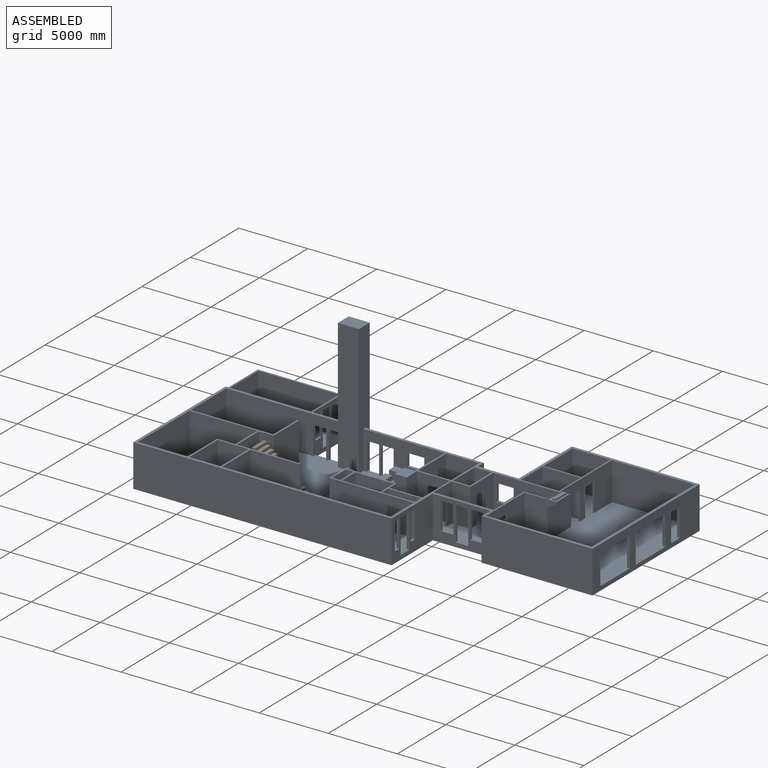
[diagram: assembled view]
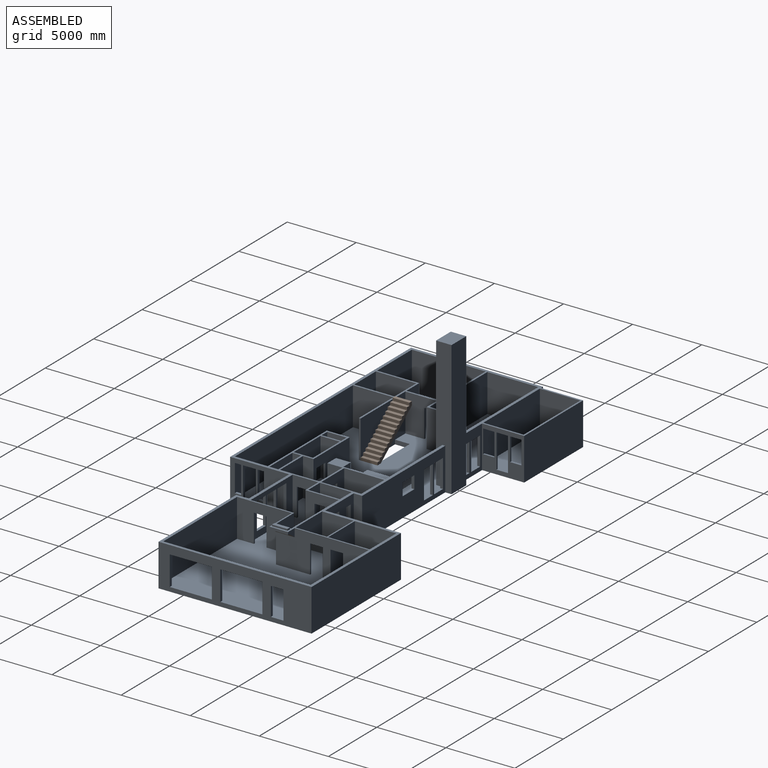
[diagram: assembled view, second angle]
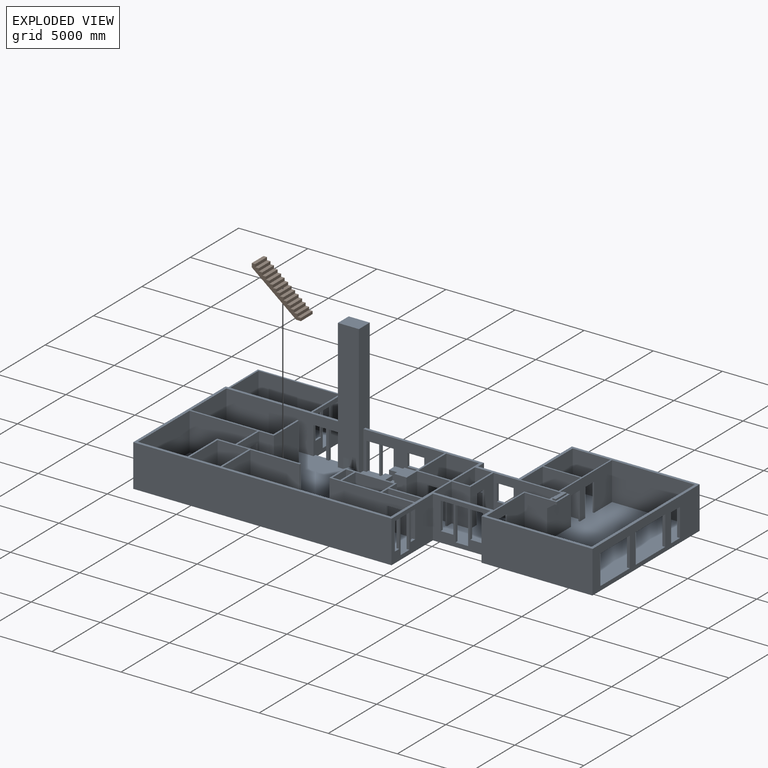
[diagram: exploded view]
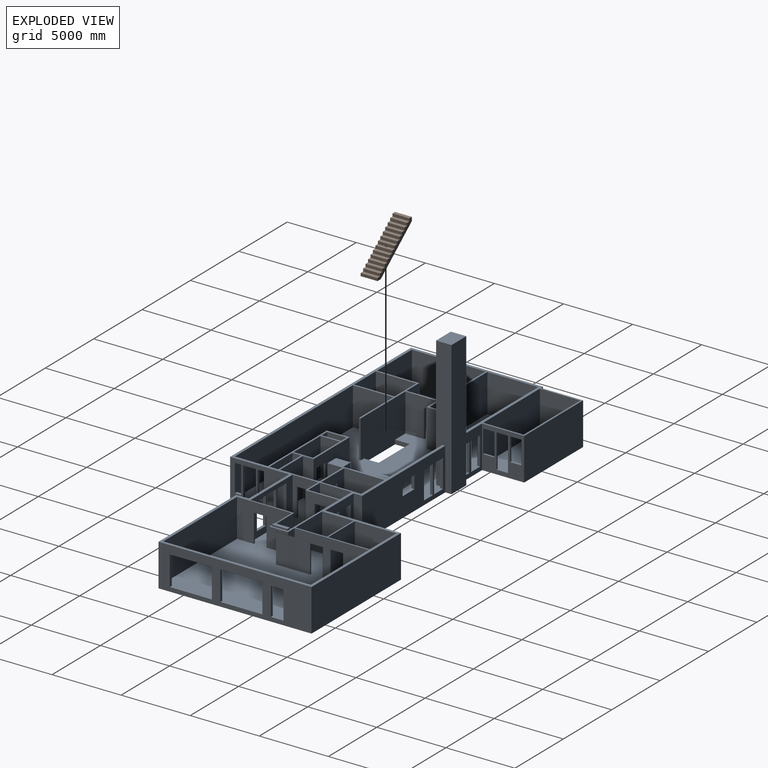
[diagram: exploded view, second angle]
ASSEMBLY  parts=2 mates=3
PART A: 263 faces, bbox 30886.4x14427.2x9753.6 mm
  f0: plane 5880.1x2743.2mm, normal (0,-1,0), area 8012887.2mm2, adj f4,f5,f6,f21,f155,f239,f247,f248
  f1: plane 8382x2743.2mm, normal (0,-1,0), area 19277380.8mm2, adj f4,f21,f42,f157,f257,f258,f259,f260
  f2: plane 3048x2286mm, normal (0,1,0), area 3251606.4mm2, adj f4,f7,f21,f35,f157,f257,f258,f259
  f3: plane 8585.2x3048mm, normal (0,1,0), area 21336731.5mm2, adj f4,f21,f35,f63,f155,f247,f248,f249
  f4: plane 30683.2x14020.8mm, normal (0,0,1), area 250275574.4mm2, adj f0,f1,f2,f3,f12,f13,f14,f15
  f5: plane 3048x1828.8mm, normal (-1,0,0), area 5574182.4mm2, adj f0,f6,f21,f242
  f6: plane 3594.1x3048mm, normal (0,0,1), area 3677412mm2, adj f0,f5,f239,f240,f241,f242
  f7: plane 3048x3048mm, normal (1,0,0), area 4521281.3mm2, adj f2,f11,f21,f35,f218,f222,f223,f224
  f8: plane 2921x2743.2mm, normal (-1,0,0), area 3243864.5mm2, adj f9,f11,f21,f221,f222,f223,f224,f225
  f9: plane 5842x2743.2mm, normal (0,1,0), area 16025774.4mm2, adj f8,f11,f21,f220
  f10: plane 3048x203.2mm, normal (0,1,0), area 619353.6mm2, adj f21,f35,f48,f219
  f11: plane 5969x2921mm, normal (0,0,1), area 17170933.4mm2, adj f7,f8,f9,f220,f221,f226,f227
  f12: plane 11074.4x3048mm, normal (1,0,0), area 18890284.8mm2, adj f4,f21,f35,f51,f52,f209,f210,f211
  f13: plane 6705.7x2743.2mm, normal (1,0,0), area 13874841.3mm2, adj f4,f21,f58,f66,f174,f176,f203,f204
  f14: plane 2997.2x2743.2mm, normal (-1,0,0), area 6363858.2mm2, adj f4,f21,f47,f64,f203,f204,f205
  f15: plane 4267.2x2743.2mm, normal (-1,0,0), area 6244373mm2, adj f4,f18,f19,f21,f38,f39,f40,f103
  f16: plane 2743.2x1219.2mm, normal (0,-1,0), area 2926445.8mm2, adj f4,f21,f28,f67,f193,f194,f195,f196
  f17: plane 3048x2946.4mm, normal (0,1,0), area 7076114.9mm2, adj f21,f35,f53,f63,f189,f190,f191,f192
  f18: plane 5029.2x2743.2mm, normal (0,-1,0), area 6775286mm2, adj f4,f15,f21,f27,f38,f102,f113,f114
  f19: plane 4343.4x2743.2mm, normal (0,1,0), area 6061923.4mm2, adj f4,f15,f21,f74,f178,f179,f180,f181
  f20: plane 4165.6x3048mm, normal (0,-1,0), area 6843857.3mm2, adj f4,f21,f22,f35,f50,f178,f179,f180
  f21: plane 30886.4x14427.2mm, normal (0,0,1), area 29654136.8mm2, adj f0,f1,f2,f3,f5,f7,f8,f9
  f22: plane 4267.2x3048mm, normal (1,0,0), area 8965143.4mm2, adj f4,f20,f21,f35,f49,f163,f164,f165
  f23: plane 2743.2x2374.9mm, normal (-1,0,0), area 2473543.4mm2, adj f4,f21,f32,f62,f163,f164,f165,f166
  f24: plane 9448.8x1524mm, normal (0,-1,0), area 13819327.2mm2, adj f4,f155,f157,f158,f159,f161,f162
  f25: plane 2032x127mm, normal (0,-1,0), area 258064mm2, adj f4,f73,f74,f154
  f26: plane 2032x127mm, normal (0,1,0), area 258064mm2, adj f4,f73,f74,f154
  f27: plane 2743.2x2413mm, normal (1,0,0), area 5070957.6mm2, adj f4,f18,f21,f75,f151,f152,f153
  f28: plane 2743.2x2286mm, normal (-1,0,0), area 4722571.2mm2, adj f4,f16,f21,f76,f151,f152,f153
  f29: plane 2743.2x1651mm, normal (-1,0,0), area 2670962.4mm2, adj f4,f21,f31,f32,f148,f149,f150
  f30: plane 2768.6x2743.2mm, normal (0,-1,0), area 5736762.7mm2, adj f4,f21,f77,f78,f145,f146,f147
  f31: plane 3721.1x2743.2mm, normal (0,1,0), area 8349660.7mm2, adj f4,f21,f29,f86,f145,f146,f147
  f32: plane 6096x2743.2mm, normal (0,-1,0), area 13625779.2mm2, adj f4,f21,f23,f29,f142,f143,f144
  f33: plane 2743.2x2286mm, normal (1,0,0), area 4722571.2mm2, adj f4,f21,f90,f91,f139,f140,f141
  f34: plane 2743.2x2286mm, normal (-1,0,0), area 4722571.2mm2, adj f4,f21,f96,f97,f139,f140,f141
  f35: plane 30886.4x14427.2mm, normal (0,0,-1), area 309432126.7mm2, adj f2,f3,f7,f10,f12,f17,f20,f22
  f36: plane 2743.2x1676.4mm, normal (0,1,0), area 3914659.2mm2, adj f21,f37,f46,f133,f134
  f37: plane 3175x2743.2mm, normal (-1,0,0), area 6236964.4mm2, adj f4,f21,f36,f65,f133,f135,f206,f207
  f38: plane 1219.2x1117.7mm, normal (0,0,1), area 1362701.8mm2, adj f15,f18,f40,f102
  f39: plane 2032x1380.31mm, normal (0,1,0), area 1473176.8mm2, adj f15,f21,f113,f114,f115,f116,f117,f118
  f40: plane 1219.2x195.94mm, normal (0,-1,0), area 238893.5mm2, adj f15,f38,f102,f112
  f41: plane 2921x2247.9mm, normal (0,0,1), area 6566115.9mm2, adj f44,f99,f100,f101
  f42: plane 3683x2743.2mm, normal (1,0,0), area 10103205.6mm2, adj f1,f4,f21,f95
  f43: plane 3594.1x2743.2mm, normal (0,1,0), area 9859335.1mm2, adj f4,f21,f54,f98
  f44: plane 2743.2x2247.9mm, normal (0,1,0), area 6166439.3mm2, adj f21,f41,f99,f101
  f45: plane 2743.2x635mm, normal (-1,0,0), area 1741932mm2, adj f4,f21,f82,f84
  f46: plane 3175x2743.2mm, normal (1,0,0), area 7176759.8mm2, adj f4,f21,f36,f65,f134,f135
  f47: plane 2743.2x2743.2mm, normal (0,-1,0), area 7525146.2mm2, adj f4,f14,f21,f57
  f48: plane 9550.4x3048mm, normal (-1,0,0), area 29109619.2mm2, adj f10,f21,f35,f49
  f49: plane 18694.4x3048mm, normal (0,-1,0), area 56980531.2mm2, adj f21,f22,f35,f48
  f50: plane 3048x914.4mm, normal (-1,0,0), area 2787091.2mm2, adj f20,f21,f35,f51
  f51: plane 8026.4x3048mm, normal (0,-1,0), area 24464467.2mm2, adj f12,f21,f35,f50
  f52: plane 9245.6x3048mm, normal (0,1,0), area 28180588.8mm2, adj f12,f21,f35,f53
  f53: plane 5486.4x3048mm, normal (-1,0,0), area 16722547.2mm2, adj f17,f21,f35,f52
  f54: plane 5334x2743.2mm, normal (1,0,0), area 14632228.8mm2, adj f4,f21,f43,f96
  f55: plane 2743.2x2374.9mm, normal (0,-1,0), area 6514825.7mm2, adj f4,f21,f56,f69
  f56: plane 2895.6x2743.2mm, normal (-1,0,0), area 7943209.9mm2, adj f4,f21,f55,f68
  f57: plane 2997.2x2743.2mm, normal (1,0,0), area 8221919mm2, adj f4,f21,f47,f64
  f58: plane 5994.4x2743.2mm, normal (0,-1,0), area 16443838.1mm2, adj f4,f13,f21,f59
  f59: plane 10668x2743.2mm, normal (-1,0,0), area 14399971.2mm2, adj f4,f21,f58,f60,f209,f210,f211,f212
  f60: plane 7620x2743.2mm, normal (0,1,0), area 20903184mm2, adj f4,f21,f59,f61
  f61: plane 3962.3x2743.2mm, normal (1,0,0), area 9011316.2mm2, adj f4,f21,f60,f66,f200,f201,f202
  f62: plane 12192x2743.2mm, normal (0,1,0), area 33445094.4mm2, adj f4,f21,f23,f89
  f63: plane 3048x609.6mm, normal (1,0,0), area 1858060.8mm2, adj f3,f17,f21,f35
  f64: plane 2743.2x2743.2mm, normal (0,1,0), area 7525146.2mm2, adj f4,f14,f21,f57
  f65: plane 2743.2x2743.2mm, normal (0,-1,0), area 7525146.2mm2, adj f4,f21,f37,f46
  f66: plane 2743.2x2311.4mm, normal (0,-1,0), area 4701557.5mm2, adj f4,f13,f21,f61,f175,f176,f177
  f67: plane 2743.2x2286mm, normal (1,0,0), area 6270955.2mm2, adj f4,f16,f21,f76
  f68: plane 2743.2x2374.9mm, normal (0,1,0), area 4656764.9mm2, adj f4,f21,f56,f69,f197,f198,f199
  f69: plane 2895.6x2743.2mm, normal (1,0,0), area 7943209.9mm2, adj f4,f21,f55,f68
  f70: plane 2743.2x889mm, normal (0,-1,0), area 2438704.8mm2, adj f4,f21,f71,f243
  f71: plane 2743.2x1092.2mm, normal (1,0,0), area 2996123mm2, adj f4,f21,f70,f72
  f72: plane 2743.2x2374.9mm, normal (0,-1,0), area 4656764.9mm2, adj f4,f21,f71,f73,f197,f198,f199
  f73: plane 2857.5x2743.2mm, normal (-1,0,0), area 5670956.4mm2, adj f4,f21,f25,f26,f72,f85,f154
  f74: plane 2743.2x1854.2mm, normal (1,0,0), area 2918703.8mm2, adj f4,f19,f21,f25,f26,f75,f154
  f75: plane 2743.2x1346.2mm, normal (0,-1,0), area 3692895.8mm2, adj f4,f21,f27,f74
  f76: plane 2743.2x1219.2mm, normal (0,1,0), area 3344509.4mm2, adj f4,f21,f28,f67
  f77: plane 2743.2x1397mm, normal (1,0,0), area 3832250.4mm2, adj f4,f21,f30,f88
  f78: plane 2743.2x1397mm, normal (-1,0,0), area 3832250.4mm2, adj f4,f21,f30,f88
  f79: plane 2743.2x1397mm, normal (1,0,0), area 1974189.6mm2, adj f4,f21,f80,f87,f148,f149,f150
  f80: plane 2743.2x571.5mm, normal (0,-1,0), area 1567738.8mm2, adj f4,f21,f79,f81
  f81: plane 2743.2x1397mm, normal (-1,0,0), area 3832250.4mm2, adj f4,f21,f80,f87
  f82: plane 2743.2x2374.9mm, normal (0,1,0), area 3418057.7mm2, adj f4,f21,f45,f83,f142,f143,f144
  f83: plane 2743.2x635mm, normal (1,0,0), area 1741932mm2, adj f4,f21,f82,f84
  f84: plane 2743.2x2374.9mm, normal (0,-1,0), area 6514825.7mm2, adj f4,f21,f45,f83
  f85: plane 2743.2x2374.9mm, normal (0,1,0), area 6514825.7mm2, adj f4,f21,f73,f86
  f86: plane 2743.2x762mm, normal (1,0,0), area 2090318.4mm2, adj f4,f21,f31,f85
  f87: plane 2743.2x571.5mm, normal (0,1,0), area 1567738.8mm2, adj f4,f21,f79,f81
  f88: plane 2768.6x2743.2mm, normal (0,1,0), area 7594823.5mm2, adj f4,f21,f77,f78
  f89: plane 2921x2743.2mm, normal (1,0,0), area 8012887.2mm2, adj f4,f21,f62,f233
  f90: plane 4622.8x3048mm, normal (0,1,0), area 13661031.6mm2, adj f4,f21,f33,f35,f136,f137,f234
  f91: plane 2743.2x1066.8mm, normal (0,-1,0), area 2926445.8mm2, adj f4,f21,f33,f92
  f92: plane 2743.2x2590.8mm, normal (1,0,0), area 7107082.6mm2, adj f4,f21,f91,f93
  f93: plane 2743.2x127mm, normal (0,1,0), area 348386.4mm2, adj f4,f21,f92,f94
  f94: plane 2743.2x2463.8mm, normal (-1,0,0), area 6758696.2mm2, adj f4,f21,f93,f95
  f95: plane 5969x2743.2mm, normal (0,1,0), area 16374160.8mm2, adj f4,f21,f42,f94
  f96: plane 4902.2x2743.2mm, normal (0,-1,0), area 13447715mm2, adj f4,f21,f34,f54
  f97: plane 2743.2x1308.1mm, normal (0,1,0), area 3588379.9mm2, adj f4,f21,f34,f98
  f98: plane 3048x2743.2mm, normal (-1,0,0), area 8361273.6mm2, adj f4,f21,f43,f97
  f99: plane 2921x2743.2mm, normal (1,0,0), area 8012887.2mm2, adj f21,f41,f44,f100
  f100: plane 2743.2x2247.9mm, normal (0,-1,0), area 6166439.3mm2, adj f21,f41,f99,f101
  f101: plane 2921x2743.2mm, normal (-1,0,0), area 8012887.2mm2, adj f21,f41,f44,f100
  f102: plane 2387.7x1175.66mm, normal (-1,0,0), area 2060576.2mm2, adj f4,f18,f38,f40,f103,f104,f105,f106
  f103: plane 1219.2x195.94mm, normal (0,-1,0), area 238893.5mm2, adj f4,f15,f102,f104
  f104: plane 1219.2x254mm, normal (0,0,1), area 309676.8mm2, adj f15,f102,f103,f105
  f105: plane 1219.2x195.94mm, normal (0,-1,0), area 238893.5mm2, adj f15,f102,f104,f106
  f106: plane 1219.2x254mm, normal (0,0,1), area 309676.8mm2, adj f15,f102,f105,f107
  f107: plane 1219.2x195.94mm, normal (0,-1,0), area 238893.5mm2, adj f15,f102,f106,f108
  f108: plane 1219.2x254mm, normal (0,0,1), area 309676.8mm2, adj f15,f102,f107,f109
  f109: plane 1219.2x195.94mm, normal (0,-1,0), area 238893.5mm2, adj f15,f102,f108,f110
  f110: plane 1219.2x254mm, normal (0,0,1), area 309676.8mm2, adj f15,f102,f109,f111
  f111: plane 1219.2x195.94mm, normal (0,-1,0), area 238893.5mm2, adj f15,f102,f110,f112
  f112: plane 1219.2x254mm, normal (0,0,1), area 309676.8mm2, adj f15,f40,f102,f111
  f113: plane 1117.7x187.23mm, normal (-1,0,0), area 209272.1mm2, adj f18,f39,f114,f124
  f114: plane 1117.7x254mm, normal (0,0,1), area 283896.2mm2, adj f18,f39,f113,f115
  f115: plane 1117.7x187.23mm, normal (-1,0,0), area 209272.1mm2, adj f18,f39,f114,f116
  f116: plane 1117.7x254mm, normal (0,0,1), area 283896.2mm2, adj f18,f39,f115,f117
  f117: plane 1117.7x187.23mm, normal (-1,0,0), area 209272.1mm2, adj f18,f39,f116,f118
  f118: plane 1117.7x254mm, normal (0,0,1), area 283896.2mm2, adj f18,f39,f117,f119
  f119: plane 1117.7x187.23mm, normal (-1,0,0), area 209272.1mm2, adj f18,f39,f118,f120
  f120: plane 1117.7x254mm, normal (0,0,1), area 283896.2mm2, adj f18,f39,f119,f121
  f121: plane 1117.7x187.23mm, normal (-1,0,0), area 209272.1mm2, adj f18,f39,f120,f122
  f122: plane 1117.7x254mm, normal (0,0,1), area 283896.2mm2, adj f18,f39,f121,f123
  f123: plane 1117.7x187.23mm, normal (-1,0,0), area 209272.1mm2, adj f18,f39,f122,f125
  f124: plane 1117.7x254mm, normal (0,0,1), area 283896.2mm2, adj f18,f39,f113,f128
  f125: plane 1117.7x254mm, normal (0,0,1), area 283896.2mm2, adj f15,f18,f39,f123
  f126: plane 254x117.57mm, normal (0,1,0), area 29861.7mm2, adj f21,f127,f130,f131
  f127: plane 1117.7x117.57mm, normal (1,0,0), area 131403.4mm2, adj f21,f126,f131,f132
  f128: plane 1117.7x187.23mm, normal (-1,0,0), area 209272.1mm2, adj f18,f39,f124,f129
  f129: plane 1117.7x254mm, normal (0,0,1), area 283896.2mm2, adj f18,f39,f128,f130
  f130: plane 1117.7x187.23mm, normal (-1,0,0), area 209272.1mm2, adj f18,f39,f126,f129,f131,f132
  f131: plane 1117.7x254mm, normal (0,0,1), area 283896.2mm2, adj f126,f127,f130,f132
  f132: plane 254x117.57mm, normal (0,-1,0), area 29861.7mm2, adj f21,f127,f130,f131
  f133: plane 1362.32x1004.23mm, normal (0.59,0,-0.8), area 1547579.4mm2, adj f36,f37,f134,f135
  f134: plane 1380.88x914.4mm, normal (0,0,-1), area 1262673.2mm2, adj f36,f46,f133,f135
  f135: plane 2743.2x2071.03mm, normal (0,1,0), area 3610487.1mm2, adj f4,f37,f46,f133,f134
  f136: plane 1066.8x304.8mm, normal (1,0,0), area 325160.6mm2, adj f4,f35,f90,f138
  f137: plane 1066.8x304.8mm, normal (-1,0,0), area 325160.6mm2, adj f4,f35,f90,f138
  f138: plane 3214.46x304.8mm, normal (0,-1,0), area 979766.6mm2, adj f4,f35,f136,f137
  f139: plane 2032x127mm, normal (0,1,0), area 258064mm2, adj f4,f33,f34,f141
  f140: plane 2032x127mm, normal (0,-1,0), area 258064mm2, adj f4,f33,f34,f141
  f141: plane 762x127mm, normal (0,0,-1), area 96774mm2, adj f33,f34,f139,f140
  f142: plane 2032x127mm, normal (1,0,0), area 258064mm2, adj f4,f32,f82,f144
  f143: plane 2032x127mm, normal (-1,0,0), area 258064mm2, adj f4,f32,f82,f144
  f144: plane 1524x127mm, normal (0,0,-1), area 193548mm2, adj f32,f82,f142,f143
  f145: plane 2032x127mm, normal (-1,0,0), area 258064mm2, adj f4,f30,f31,f147
  f146: plane 2032x127mm, normal (1,0,0), area 258064mm2, adj f4,f30,f31,f147
  f147: plane 914.4x127mm, normal (0,0,-1), area 116128.8mm2, adj f30,f31,f145,f146
  f148: plane 2032x127mm, normal (0,-1,0), area 258064mm2, adj f4,f29,f79,f150
  f149: plane 2032x127mm, normal (0,1,0), area 258064mm2, adj f4,f29,f79,f150
  f150: plane 914.4x127mm, normal (0,0,-1), area 116128.8mm2, adj f29,f79,f148,f149
  f151: plane 2032x127mm, normal (0,1,0), area 258064mm2, adj f4,f27,f28,f153
  f152: plane 2032x127mm, normal (0,-1,0), area 258064mm2, adj f4,f27,f28,f153
  f153: plane 762x127mm, normal (0,0,-1), area 96774mm2, adj f27,f28,f151,f152
  f154: plane 1066.8x127mm, normal (0,0,-1), area 135483.6mm2, adj f25,f26,f73,f74
  f155: plane 9753.6x1117.6mm, normal (1,0,0), area 10141915.2mm2, adj f0,f3,f4,f21,f24,f35,f156,f158
  f156: plane 9753.6x1524mm, normal (0,1,0), area 14864486.4mm2, adj f35,f155,f157,f158
  f157: plane 9753.6x1117.6mm, normal (-1,0,0), area 10141915.2mm2, adj f1,f2,f4,f21,f24,f35,f156,f158
  f158: plane 1524x1117.6mm, normal (0,0,1), area 1703222.4mm2, adj f24,f155,f156,f157
  f159: plane 762x365.76mm, normal (-0.92,-0.38,0), area 301672.6mm2, adj f4,f24,f160,f162
  f160: plane 762x458.99mm, normal (0,-1,0), area 349753.8mm2, adj f4,f159,f161,f162
  f161: plane 762x365.76mm, normal (0.92,-0.38,0), area 301672.6mm2, adj f4,f24,f160,f162
  f162: plane 762x365.76mm, normal (0,0,-1), area 223295.5mm2, adj f24,f159,f160,f161
  f163: plane 2438.4x203.2mm, normal (0,-1,0), area 495482.9mm2, adj f4,f22,f23,f165
  f164: plane 2438.4x203.2mm, normal (0,1,0), area 495482.9mm2, adj f4,f22,f23,f165
  f165: plane 914.4x203.2mm, normal (0,0,-1), area 185806.1mm2, adj f22,f23,f163,f164
  f166: plane 457.2x203.2mm, normal (0,0,-1), area 92903mm2, adj f22,f23,f167,f169
  f167: plane 1981.2x203.2mm, normal (0,-1,0), area 402579.8mm2, adj f22,f23,f166,f168
  f168: plane 457.2x203.2mm, normal (0,0,1), area 92903mm2, adj f22,f23,f167,f169
  f169: plane 1981.2x203.2mm, normal (0,1,0), area 402579.8mm2, adj f22,f23,f166,f168
  f170: plane 457.2x203.2mm, normal (0,0,-1), area 92903mm2, adj f22,f23,f171,f173
  f171: plane 1981.2x203.2mm, normal (0,-1,0), area 402579.8mm2, adj f22,f23,f170,f172
  f172: plane 457.2x203.2mm, normal (0,0,1), area 92903mm2, adj f22,f23,f171,f173
  f173: plane 1981.2x203.2mm, normal (0,1,0), area 402579.8mm2, adj f22,f23,f170,f172
  f174: plane 685.8x597.28mm, normal (0,1,0), area 242211.5mm2, adj f13,f21,f175,f176,f177
  f175: plane 1346.3x185.36mm, normal (1,0,0), area 249555.3mm2, adj f21,f66,f174,f177
  f176: plane 1346.3x558.8mm, normal (0.59,0,-0.8), area 934620.1mm2, adj f13,f66,f174,f177
  f177: plane 1346.3x127mm, normal (0,0,-1), area 170980.3mm2, adj f66,f174,f175,f176
  f178: plane 2438.4x203.2mm, normal (-1,0,0), area 495482.9mm2, adj f4,f19,f20,f180
  f179: plane 2438.4x203.2mm, normal (1,0,0), area 495482.9mm2, adj f4,f19,f20,f180
  f180: plane 914.4x203.2mm, normal (0,0,-1), area 185806.1mm2, adj f19,f20,f178,f179
  f181: plane 914.4x203.2mm, normal (0,0,-1), area 185806.1mm2, adj f19,f20,f182,f184
  f182: plane 1981.2x203.2mm, normal (-1,0,0), area 402579.8mm2, adj f19,f20,f181,f183
  f183: plane 914.4x203.2mm, normal (0,0,1), area 185806.1mm2, adj f19,f20,f182,f184
  f184: plane 1981.2x203.2mm, normal (1,0,0), area 402579.8mm2, adj f19,f20,f181,f183
  f185: plane 914.4x203.2mm, normal (0,0,-1), area 185806.1mm2, adj f19,f20,f186,f188
  f186: plane 1981.2x203.2mm, normal (-1,0,0), area 402579.8mm2, adj f19,f20,f185,f187
  f187: plane 914.4x203.2mm, normal (0,0,1), area 185806.1mm2, adj f19,f20,f186,f188
  f188: plane 1981.2x203.2mm, normal (1,0,0), area 402579.8mm2, adj f19,f20,f185,f187
  f189: plane 1219.2x203.2mm, normal (0,0,1), area 247741.4mm2, adj f17,f18,f190,f192
  f190: plane 1219.2x203.2mm, normal (-1,0,0), area 247741.4mm2, adj f17,f18,f189,f191
  f191: plane 1219.2x203.2mm, normal (0,0,-1), area 247741.4mm2, adj f17,f18,f190,f192
  f192: plane 1219.2x203.2mm, normal (1,0,0), area 247741.4mm2, adj f17,f18,f189,f191
  f193: plane 457.2x203.2mm, normal (0,0,1), area 92903mm2, adj f16,f17,f194,f196
  f194: plane 914.4x203.2mm, normal (-1,0,0), area 185806.1mm2, adj f16,f17,f193,f195
  f195: plane 457.2x203.2mm, normal (0,0,-1), area 92903mm2, adj f16,f17,f194,f196
  f196: plane 914.4x203.2mm, normal (1,0,0), area 185806.1mm2, adj f16,f17,f193,f195
  f197: plane 2032x127mm, normal (-1,0,0), area 258064mm2, adj f4,f68,f72,f199
  f198: plane 2032x127mm, normal (1,0,0), area 258064mm2, adj f4,f68,f72,f199
  f199: plane 914.4x127mm, normal (0,0,-1), area 116128.8mm2, adj f68,f72,f197,f198
  f200: plane 2032x101.6mm, normal (0,-1,0), area 206451.2mm2, adj f4,f15,f61,f202
  f201: plane 2032x101.6mm, normal (0,1,0), area 206451.2mm2, adj f4,f15,f61,f202
  f202: plane 914.4x101.6mm, normal (0,0,-1), area 92903mm2, adj f15,f61,f200,f201
  f203: plane 2032x101.6mm, normal (0,1,0), area 206451.2mm2, adj f4,f13,f14,f204
  f204: plane 914.4x101.6mm, normal (0,0,-1), area 92903mm2, adj f13,f14,f203,f205
  f205: plane 2032x101.6mm, normal (0,-1,0), area 206451.2mm2, adj f4,f13,f14,f204
  f206: plane 2032x101.6mm, normal (0,1,0), area 206451.2mm2, adj f4,f13,f37,f208
  f207: plane 2032x101.6mm, normal (0,-1,0), area 206451.2mm2, adj f4,f13,f37,f208
  f208: plane 914.4x101.6mm, normal (0,0,-1), area 92903mm2, adj f13,f37,f206,f207
  f209: plane 2032x203.2mm, normal (0,-1,0), area 412902.4mm2, adj f4,f12,f59,f211
  f210: plane 2032x203.2mm, normal (0,1,0), area 412902.4mm2, adj f4,f12,f59,f211
  f211: plane 914.4x203.2mm, normal (0,0,-1), area 185806.1mm2, adj f12,f59,f209,f210
  f212: plane 2133.6x203.2mm, normal (0,-1,0), area 433547.5mm2, adj f4,f12,f59,f214
  f213: plane 2133.6x203.2mm, normal (0,1,0), area 433547.5mm2, adj f4,f12,f59,f214
  f214: plane 3048x203.2mm, normal (0,0,-1), area 619353.6mm2, adj f12,f59,f212,f213
  f215: plane 2133.6x203.2mm, normal (0,-1,0), area 433547.5mm2, adj f4,f12,f59,f217
  f216: plane 2133.6x203.2mm, normal (0,1,0), area 433547.5mm2, adj f4,f12,f59,f217
  f217: plane 3048x203.2mm, normal (0,0,-1), area 619353.6mm2, adj f12,f59,f215,f216
  f218: plane 6096x3048mm, normal (0,1,0), area 18580608mm2, adj f7,f21,f35,f219
  f219: plane 3048x3048mm, normal (-1,0,0), area 9290304mm2, adj f10,f21,f35,f218
  f220: plane 2921x2743.2mm, normal (1,0,0), area 8012887.2mm2, adj f9,f11,f21,f221
  f221: plane 5842x2743.2mm, normal (0,-1,0), area 16025774.4mm2, adj f8,f11,f21,f220
  f222: plane 1676.4x127mm, normal (0,-1,0), area 212902.8mm2, adj f7,f8,f223,f224
  f223: plane 812.8x127mm, normal (0,0,-1), area 103225.6mm2, adj f7,f8,f222,f225
  f224: plane 812.8x127mm, normal (0,0,1), area 103225.6mm2, adj f7,f8,f222,f225
  f225: plane 1676.4x127mm, normal (0,1,0), area 212902.8mm2, adj f7,f8,f223,f224
  f226: plane 2438.4x127mm, normal (0,-1,0), area 309676.8mm2, adj f7,f8,f11,f228
  f227: plane 2438.4x127mm, normal (0,1,0), area 309676.8mm2, adj f7,f8,f11,f228
  f228: plane 838.2x127mm, normal (0,0,-1), area 106451.4mm2, adj f7,f8,f226,f227
  f229: plane 1676.4x127mm, normal (0,-1,0), area 212902.8mm2, adj f7,f8,f230,f231
  f230: plane 812.8x127mm, normal (0,0,-1), area 103225.6mm2, adj f7,f8,f229,f232
  f231: plane 812.8x127mm, normal (0,0,1), area 103225.6mm2, adj f7,f8,f229,f232
  f232: plane 1676.4x127mm, normal (0,1,0), area 212902.8mm2, adj f7,f8,f230,f231
  f233: plane 3556x2743.2mm, normal (0,-1,0), area 9754819.2mm2, adj f4,f21,f89,f234
  f234: plane 2743.2x127mm, normal (1,0,0), area 348386.4mm2, adj f4,f21,f90,f233
  f235: plane 1295.4x1219.2mm, normal (0,1,0), area 1347094.1mm2, adj f4,f237,f238,f244,f245,f246
  f236: plane 1295.4x1219.2mm, normal (0,-1,0), area 1347094.1mm2, adj f4,f237,f238,f244,f245,f246
  f237: plane 1828.8x914.4mm, normal (1,0,0), area 1672254.7mm2, adj f4,f235,f236,f238
  f238: plane 1828.8x762mm, normal (0,0,1), area 1393545.6mm2, adj f235,f236,f237,f244
  f239: plane 914.4x609.6mm, normal (-1,0,0), area 557418.2mm2, adj f0,f4,f6,f240
  f240: plane 2984.5x914.4mm, normal (0,-1,0), area 2729026.8mm2, adj f4,f6,f239,f241
  f241: plane 2438.4x914.4mm, normal (-1,0,0), area 2229673mm2, adj f4,f6,f240,f242
  f242: plane 2743.2x762mm, normal (0,1,0), area 1532900.2mm2, adj f4,f5,f6,f21,f241,f243
  f243: plane 2743.2x1066.8mm, normal (-1,0,0), area 2926445.8mm2, adj f4,f21,f70,f242
  f244: plane 1828.8x304.8mm, normal (1,0,0), area 557418.2mm2, adj f235,f236,f238,f246
  f245: plane 1828.8x1219.2mm, normal (-1,0,0), area 2229673mm2, adj f4,f235,f236,f246
  f246: plane 1828.8x533.4mm, normal (0,0,1), area 975481.9mm2, adj f235,f236,f244,f245
  f247: plane 914.4x203.2mm, normal (0,0,-1), area 185806.1mm2, adj f0,f3,f248,f249
  f248: plane 2032x203.2mm, normal (1,0,0), area 412902.4mm2, adj f0,f3,f4,f247
  f249: plane 2032x203.2mm, normal (-1,0,0), area 412902.4mm2, adj f0,f3,f4,f247
  f250: plane 914.4x203.2mm, normal (0,0,-1), area 185806.1mm2, adj f0,f3,f251,f252
  f251: plane 2032x203.2mm, normal (1,0,0), area 412902.4mm2, adj f0,f3,f4,f250
  f252: plane 2032x203.2mm, normal (-1,0,0), area 412902.4mm2, adj f0,f3,f4,f250
  f253: plane 1219.2x203.2mm, normal (0,0,-1), area 247741.4mm2, adj f0,f3,f254,f256
  f254: plane 914.4x203.2mm, normal (1,0,0), area 185806.1mm2, adj f0,f3,f253,f255
  f255: plane 1219.2x203.2mm, normal (0,0,1), area 247741.4mm2, adj f0,f3,f254,f256
  f256: plane 914.4x203.2mm, normal (-1,0,0), area 185806.1mm2, adj f0,f3,f253,f255
  f257: plane 2032x203.2mm, normal (1,0,0), area 412902.4mm2, adj f1,f2,f4,f259
  f258: plane 2032x203.2mm, normal (-1,0,0), area 412902.4mm2, adj f1,f2,f4,f259
  f259: plane 914.4x203.2mm, normal (0,0,-1), area 185806.1mm2, adj f1,f2,f257,f258
  f260: plane 914.4x203.2mm, normal (0,0,-1), area 185806.1mm2, adj f1,f2,f261,f262
  f261: plane 2032x203.2mm, normal (1,0,0), area 412902.4mm2, adj f1,f2,f4,f260
  f262: plane 2032x203.2mm, normal (-1,0,0), area 412902.4mm2, adj f1,f2,f4,f260
PART B: 33 faces, bbox 3556x1219.2x2844.8 mm
  f0: plane 3214.46x2571.57mm, normal (-0.62,0,-0.78), area 5018853.8mm2, adj f1,f30,f31,f32
  f1: plane 1219.2x273.23mm, normal (-1,0,0), area 333127mm2, adj f0,f2,f31,f32
  f2: plane 1219.2x254mm, normal (0,0,1), area 309676.8mm2, adj f1,f3,f31,f32
  f3: plane 1219.2x203.2mm, normal (1,0,0), area 247741.4mm2, adj f2,f4,f31,f32
  f4: plane 1219.2x254mm, normal (0,0,1), area 309676.8mm2, adj f3,f5,f31,f32
  f5: plane 1219.2x203.2mm, normal (1,0,0), area 247741.4mm2, adj f4,f6,f31,f32
  f6: plane 1219.2x254mm, normal (0,0,1), area 309676.8mm2, adj f5,f7,f31,f32
  f7: plane 1219.2x203.2mm, normal (1,0,0), area 247741.4mm2, adj f6,f8,f31,f32
  f8: plane 1219.2x254mm, normal (0,0,1), area 309676.8mm2, adj f7,f9,f31,f32
  f9: plane 1219.2x203.2mm, normal (1,0,0), area 247741.4mm2, adj f8,f10,f31,f32
  f10: plane 1219.2x254mm, normal (0,0,1), area 309676.8mm2, adj f9,f11,f31,f32
  f11: plane 1219.2x203.2mm, normal (1,0,0), area 247741.4mm2, adj f10,f12,f31,f32
  f12: plane 1219.2x254mm, normal (0,0,1), area 309676.8mm2, adj f11,f13,f31,f32
  f13: plane 1219.2x203.2mm, normal (1,0,0), area 247741.4mm2, adj f12,f14,f31,f32
  f14: plane 1219.2x254mm, normal (0,0,1), area 309676.8mm2, adj f13,f15,f31,f32
  f15: plane 1219.2x203.2mm, normal (1,0,0), area 247741.4mm2, adj f14,f16,f31,f32
  f16: plane 1219.2x254mm, normal (0,0,1), area 309676.8mm2, adj f15,f17,f31,f32
  f17: plane 1219.2x203.2mm, normal (1,0,0), area 247741.4mm2, adj f16,f18,f31,f32
  f18: plane 1219.2x254mm, normal (0,0,1), area 309676.8mm2, adj f17,f19,f31,f32
  f19: plane 1219.2x203.2mm, normal (1,0,0), area 247741.4mm2, adj f18,f20,f31,f32
  f20: plane 1219.2x254mm, normal (0,0,1), area 309676.8mm2, adj f19,f21,f31,f32
  f21: plane 1219.2x203.2mm, normal (1,0,0), area 247741.4mm2, adj f20,f22,f31,f32
  f22: plane 1219.2x254mm, normal (0,0,1), area 309676.8mm2, adj f21,f23,f31,f32
  f23: plane 1219.2x203.2mm, normal (1,0,0), area 247741.4mm2, adj f22,f24,f31,f32
  f24: plane 1219.2x254mm, normal (0,0,1), area 309676.8mm2, adj f23,f25,f31,f32
  f25: plane 1219.2x203.2mm, normal (1,0,0), area 247741.4mm2, adj f24,f26,f31,f32
  f26: plane 1219.2x254mm, normal (0,0,1), area 309676.8mm2, adj f25,f27,f31,f32
  f27: plane 1219.2x203.2mm, normal (1,0,0), area 247741.4mm2, adj f26,f28,f31,f32
  f28: plane 1219.2x254mm, normal (0,0,1), area 309676.8mm2, adj f27,f29,f31,f32
  f29: plane 1219.2x203.2mm, normal (1,0,0), area 247741.4mm2, adj f28,f30,f31,f32
  f30: plane 1219.2x341.54mm, normal (0,0,-1), area 416408.8mm2, adj f0,f29,f31,f32
  f31: plane 3556x2844.8mm, normal (0,1,0), area 1286249.6mm2, adj f0,f1,f2,f3,f4,f5,f6,f7
  f32: plane 3556x2844.8mm, normal (0,-1,0), area 1286249.6mm2, adj f0,f1,f2,f3,f4,f5,f6,f7
PLACE A t=(0,0,-5003.93)mm fixed
PLACE B t=(0,0,-5003.93)mm
MATE planar B.f1 <-> A.f89  axis (-1,0,0) through (-12192,-609.6,-1990.95)mm
MATE planar B.f30 <-> A.f4  axis (0,0,-1) through (-8806.77,-609.6,-4699.13)mm
MATE planar B.f32 <-> A.f90  axis (0,-1,0) through (-10462.48,-1219.2,-3315.52)mm
